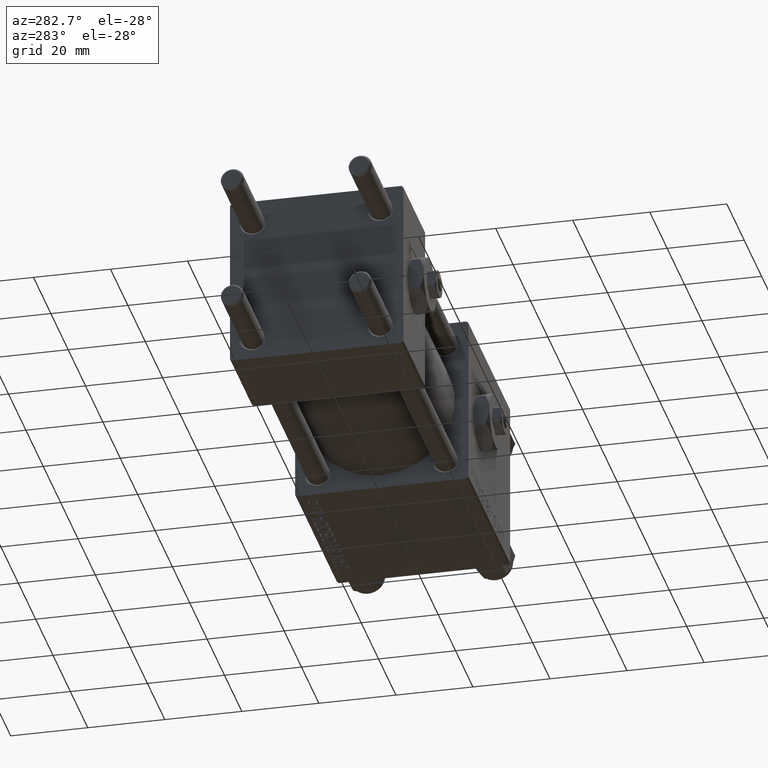
[diagram: clean part render]
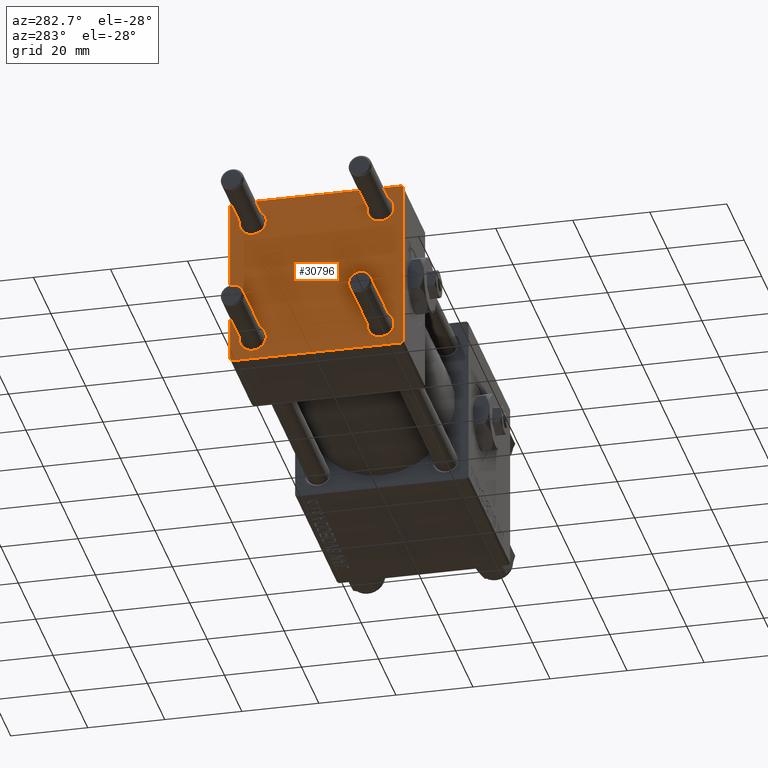
[diagram: same view with one face highlighted and labeled with its STEP entity id]
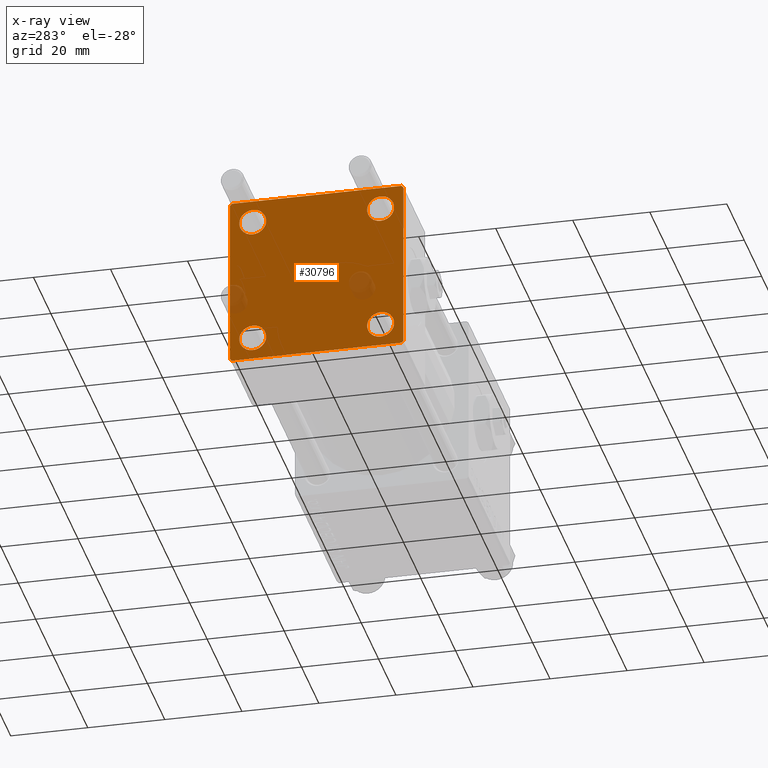
[diagram: x-ray of the same camera — body ghosted, the highlighted face saturated]
A machine part, auxiliary view. The second image highlights one B-rep face of the part: STEP entity #30796.
The next image is the same camera in x-ray: the body ghosted, the highlighted face saturated — about 4% of this face is hidden behind the body in this view.
In plain terms, the highlighted planar face has unit normal (-1, 0, 0).
Its self-contained STEP definition (entity closure, byte-faithful):
#735 = CIRCLE ( 'NONE', #33521, 3.499999999999996003 ) ;
#2781 = VERTEX_POINT ( 'NONE', #5909 ) ;
#3049 = CARTESIAN_POINT ( 'NONE',  ( 0.000000000000000000, 22.24999999999999645, 22.24999999999999645 ) ) ;
#3593 = AXIS2_PLACEMENT_3D ( 'NONE', #3646, #35483, #19184 ) ;
#3629 = FACE_BOUND ( 'NONE', #11762, .T. ) ;
#3646 = CARTESIAN_POINT ( 'NONE',  ( 0.000000000000000000, 16.59999999999999787, -16.60000000000000497 ) ) ;
#4244 = ORIENTED_EDGE ( 'NONE', *, *, #43833, .T. ) ;
#4326 = ORIENTED_EDGE ( 'NONE', *, *, #22191, .T. ) ;
#4416 = DIRECTION ( 'NONE',  ( 1.000000000000000000, -0.000000000000000000, 0.000000000000000000 ) ) ;
#4700 = ORIENTED_EDGE ( 'NONE', *, *, #30147, .T. ) ;
#5115 = VERTEX_POINT ( 'NONE', #24255 ) ;
#5337 = EDGE_CURVE ( 'NONE', #2781, #32099, #38142, .T. ) ;
#5786 = CARTESIAN_POINT ( 'NONE',  ( 0.000000000000000000, 21.99999999999999289, -22.49999999999999645 ) ) ;
#5909 = CARTESIAN_POINT ( 'NONE',  ( 0.000000000000000000, 21.99999999999999289, 22.50000000000000355 ) ) ;
#6973 = CARTESIAN_POINT ( 'NONE',  ( 0.000000000000000000, 22.50000000000000000, 22.50000000000000355 ) ) ;
#6981 = CIRCLE ( 'NONE', #3593, 3.499999999999996003 ) ;
#7110 = CARTESIAN_POINT ( 'NONE',  ( 0.000000000000000000, 22.50000000000000000, 22.50000000000000355 ) ) ;
#7246 = DIRECTION ( 'NONE',  ( 1.000000000000000000, -0.000000000000000000, 0.000000000000000000 ) ) ;
#8094 = LINE ( 'NONE', #48319, #42582 ) ;
#8873 = LINE ( 'NONE', #21252, #45205 ) ;
#9919 = EDGE_LOOP ( 'NONE', ( #42236, #19013 ) ) ;
#10467 = ORIENTED_EDGE ( 'NONE', *, *, #42221, .T. ) ;
#10866 = ORIENTED_EDGE ( 'NONE', *, *, #42326, .F. ) ;
#11271 = FACE_BOUND ( 'NONE', #31949, .T. ) ;
#11503 = CARTESIAN_POINT ( 'NONE',  ( 0.000000000000000000, -16.59999999999999076, -13.10000000000001030 ) ) ;
#11691 = EDGE_LOOP ( 'NONE', ( #24323, #17351, #33886, #21410, #10866, #10467, #21825, #4700 ) ) ;
#11762 = EDGE_LOOP ( 'NONE', ( #4326, #24115 ) ) ;
#11778 = FACE_OUTER_BOUND ( 'NONE', #11691, .T. ) ;
#11788 = CARTESIAN_POINT ( 'NONE',  ( 0.000000000000000000, -16.59999999999999076, -16.60000000000000853 ) ) ;
#11792 = DIRECTION ( 'NONE',  ( -0.000000000000000000, 0.7071067811865525687, 0.7071067811865425767 ) ) ;
#11844 = AXIS2_PLACEMENT_3D ( 'NONE', #18416, #34464, #46532 ) ;
#13180 = AXIS2_PLACEMENT_3D ( 'NONE', #44067, #47013, #15972 ) ;
#13386 = VERTEX_POINT ( 'NONE', #32019 ) ;
#14861 = CARTESIAN_POINT ( 'NONE',  ( 0.000000000000000000, -16.59999999999999076, 13.10000000000001030 ) ) ;
#14879 = CIRCLE ( 'NONE', #13180, 3.499999999999996003 ) ;
#15226 = AXIS2_PLACEMENT_3D ( 'NONE', #23479, #15334, #35573 ) ;
#15334 = DIRECTION ( 'NONE',  ( 1.000000000000000000, -0.000000000000000000, 0.000000000000000000 ) ) ;
#15767 = CARTESIAN_POINT ( 'NONE',  ( 0.000000000000000000, 16.59999999999999787, -13.10000000000000675 ) ) ;
#15972 = DIRECTION ( 'NONE',  ( 0.000000000000000000, 0.000000000000000000, 1.000000000000000000 ) ) ;
#15991 = PLANE ( 'NONE',  #41574 ) ;
#16016 = VECTOR ( 'NONE', #29876, 1000.000000000000000 ) ;
#16727 = DIRECTION ( 'NONE',  ( 0.000000000000000000, -1.000000000000000000, -2.312964634635742957E-16 ) ) ;
#16899 = CIRCLE ( 'NONE', #11844, 3.499999999999996003 ) ;
#17134 = EDGE_CURVE ( 'NONE', #40734, #5115, #21101, .T. ) ;
#17351 = ORIENTED_EDGE ( 'NONE', *, *, #35988, .T. ) ;
#17755 = AXIS2_PLACEMENT_3D ( 'NONE', #39054, #7246, #30418 ) ;
#18135 = EDGE_CURVE ( 'NONE', #21140, #49542, #44614, .T. ) ;
#18416 = CARTESIAN_POINT ( 'NONE',  ( 0.000000000000000000, 16.59999999999999787, 16.60000000000000497 ) ) ;
#19013 = ORIENTED_EDGE ( 'NONE', *, *, #48475, .T. ) ;
#19184 = DIRECTION ( 'NONE',  ( 0.000000000000000000, 0.000000000000000000, 1.000000000000000000 ) ) ;
#19238 = CARTESIAN_POINT ( 'NONE',  ( 0.000000000000000000, 16.59999999999999787, -20.10000000000000142 ) ) ;
#20144 = CARTESIAN_POINT ( 'NONE',  ( 0.000000000000000000, 22.50000000000000000, 21.99999999999999645 ) ) ;
#20462 = EDGE_CURVE ( 'NONE', #36752, #23588, #45087, .T. ) ;
#20469 = LINE ( 'NONE', #47813, #36798 ) ;
#20889 = EDGE_LOOP ( 'NONE', ( #4244, #33024 ) ) ;
#21101 = CIRCLE ( 'NONE', #15226, 3.499999999999996003 ) ;
#21140 = VERTEX_POINT ( 'NONE', #19238 ) ;
#21252 = CARTESIAN_POINT ( 'NONE',  ( 0.000000000000000000, -22.50000000000000000, 22.50000000000000000 ) ) ;
#21410 = ORIENTED_EDGE ( 'NONE', *, *, #35280, .T. ) ;
#21825 = ORIENTED_EDGE ( 'NONE', *, *, #5337, .F. ) ;
#21964 = CARTESIAN_POINT ( 'NONE',  ( 0.000000000000000000, -22.25000000000014566, -22.24999999999984013 ) ) ;
#22191 = EDGE_CURVE ( 'NONE', #49542, #21140, #6981, .T. ) ;
#23479 = CARTESIAN_POINT ( 'NONE',  ( 0.000000000000000000, -16.59999999999999076, 16.60000000000000853 ) ) ;
#23588 = VERTEX_POINT ( 'NONE', #26483 ) ;
#23631 = FACE_BOUND ( 'NONE', #20889, .T. ) ;
#23838 = DIRECTION ( 'NONE',  ( 1.000000000000000000, -0.000000000000000000, 0.000000000000000000 ) ) ;
#24115 = ORIENTED_EDGE ( 'NONE', *, *, #18135, .T. ) ;
#24255 = CARTESIAN_POINT ( 'NONE',  ( 0.000000000000000000, -16.59999999999999076, 20.10000000000000853 ) ) ;
#24290 = DIRECTION ( 'NONE',  ( 0.000000000000000000, 0.000000000000000000, 1.000000000000000000 ) ) ;
#24323 = ORIENTED_EDGE ( 'NONE', *, *, #50785, .T. ) ;
#24910 = DIRECTION ( 'NONE',  ( -0.000000000000000000, 0.000000000000000000, 1.000000000000000000 ) ) ;
#24923 = DIRECTION ( 'NONE',  ( 0.000000000000000000, 0.000000000000000000, -1.000000000000000000 ) ) ;
#25776 = VECTOR ( 'NONE', #50068, 1000.000000000000000 ) ;
#26026 = CIRCLE ( 'NONE', #31118, 3.499999999999996003 ) ;
#26483 = CARTESIAN_POINT ( 'NONE',  ( 0.000000000000000000, -21.99999999999997158, -22.50000000000000711 ) ) ;
#26831 = AXIS2_PLACEMENT_3D ( 'NONE', #32436, #28226, #24290 ) ;
#26966 = LINE ( 'NONE', #6973, #16016 ) ;
#28226 = DIRECTION ( 'NONE',  ( 1.000000000000000000, -0.000000000000000000, 0.000000000000000000 ) ) ;
#28289 = CARTESIAN_POINT ( 'NONE',  ( 0.000000000000000000, 16.59999999999999787, 16.60000000000000497 ) ) ;
#28531 = CIRCLE ( 'NONE', #26831, 3.499999999999996003 ) ;
#28821 = ORIENTED_EDGE ( 'NONE', *, *, #34165, .T. ) ;
#29876 = DIRECTION ( 'NONE',  ( 0.000000000000000000, 0.000000000000000000, -1.000000000000000000 ) ) ;
#30147 = EDGE_CURVE ( 'NONE', #2781, #36378, #39050, .T. ) ;
#30418 = DIRECTION ( 'NONE',  ( 0.000000000000000000, 0.000000000000000000, 1.000000000000000000 ) ) ;
#30446 = VECTOR ( 'NONE', #16727, 1000.000000000000000 ) ;
#30796 = ADVANCED_FACE ( 'NONE', ( #23631, #11271, #3629, #47797, #11778 ), #15991, .T. ) ;
#31118 = AXIS2_PLACEMENT_3D ( 'NONE', #11788, #4416, #35476 ) ;
#31196 = DIRECTION ( 'NONE',  ( 0.000000000000000000, 0.7071067811865474617, -0.7071067811865474617 ) ) ;
#31464 = DIRECTION ( 'NONE',  ( 0.000000000000000000, 0.000000000000000000, 1.000000000000000000 ) ) ;
#31949 = EDGE_LOOP ( 'NONE', ( #28821, #34668 ) ) ;
#32019 = CARTESIAN_POINT ( 'NONE',  ( 0.000000000000000000, -16.59999999999999076, -20.10000000000000497 ) ) ;
#32030 = CARTESIAN_POINT ( 'NONE',  ( 0.000000000000000000, 0.000000000000000000, 0.000000000000000000 ) ) ;
#32099 = VERTEX_POINT ( 'NONE', #47947 ) ;
#32201 = VERTEX_POINT ( 'NONE', #36115 ) ;
#32436 = CARTESIAN_POINT ( 'NONE',  ( 0.000000000000000000, -16.59999999999999076, 16.60000000000000853 ) ) ;
#33024 = ORIENTED_EDGE ( 'NONE', *, *, #17134, .T. ) ;
#33521 = AXIS2_PLACEMENT_3D ( 'NONE', #28289, #23838, #31464 ) ;
#33886 = ORIENTED_EDGE ( 'NONE', *, *, #20462, .T. ) ;
#34165 = EDGE_CURVE ( 'NONE', #51705, #13386, #14879, .T. ) ;
#34464 = DIRECTION ( 'NONE',  ( 1.000000000000000000, -0.000000000000000000, 0.000000000000000000 ) ) ;
#34668 = ORIENTED_EDGE ( 'NONE', *, *, #46808, .T. ) ;
#35280 = EDGE_CURVE ( 'NONE', #23588, #35696, #36484, .T. ) ;
#35476 = DIRECTION ( 'NONE',  ( 0.000000000000000000, 0.000000000000000000, 1.000000000000000000 ) ) ;
#35483 = DIRECTION ( 'NONE',  ( 1.000000000000000000, -0.000000000000000000, 0.000000000000000000 ) ) ;
#35573 = DIRECTION ( 'NONE',  ( 0.000000000000000000, 0.000000000000000000, 1.000000000000000000 ) ) ;
#35696 = VERTEX_POINT ( 'NONE', #51313 ) ;
#35988 = EDGE_CURVE ( 'NONE', #40967, #36752, #8094, .T. ) ;
#36115 = CARTESIAN_POINT ( 'NONE',  ( 0.000000000000000000, 16.59999999999999787, 13.10000000000000675 ) ) ;
#36378 = VERTEX_POINT ( 'NONE', #20144 ) ;
#36484 = LINE ( 'NONE', #21964, #25776 ) ;
#36752 = VERTEX_POINT ( 'NONE', #5786 ) ;
#36798 = VECTOR ( 'NONE', #11792, 999.9999999999998863 ) ;
#38142 = LINE ( 'NONE', #7110, #40933 ) ;
#39050 = LINE ( 'NONE', #3049, #49950 ) ;
#39054 = CARTESIAN_POINT ( 'NONE',  ( 0.000000000000000000, 16.59999999999999787, -16.60000000000000497 ) ) ;
#40623 = CARTESIAN_POINT ( 'NONE',  ( 0.000000000000000000, 22.50000000000000000, -22.49999999999999645 ) ) ;
#40720 = CARTESIAN_POINT ( 'NONE',  ( 0.000000000000000000, 16.59999999999999787, 20.10000000000000142 ) ) ;
#40734 = VERTEX_POINT ( 'NONE', #14861 ) ;
#40933 = VECTOR ( 'NONE', #46024, 1000.000000000000000 ) ;
#40967 = VERTEX_POINT ( 'NONE', #51568 ) ;
#41574 = AXIS2_PLACEMENT_3D ( 'NONE', #32030, #44878, #24910 ) ;
#42221 = EDGE_CURVE ( 'NONE', #50033, #32099, #20469, .T. ) ;
#42236 = ORIENTED_EDGE ( 'NONE', *, *, #42644, .T. ) ;
#42326 = EDGE_CURVE ( 'NONE', #50033, #35696, #8873, .T. ) ;
#42582 = VECTOR ( 'NONE', #51765, 1000.000000000000000 ) ;
#42644 = EDGE_CURVE ( 'NONE', #46008, #32201, #735, .T. ) ;
#43833 = EDGE_CURVE ( 'NONE', #5115, #40734, #28531, .T. ) ;
#44067 = CARTESIAN_POINT ( 'NONE',  ( 0.000000000000000000, -16.59999999999999076, -16.60000000000000853 ) ) ;
#44614 = CIRCLE ( 'NONE', #17755, 3.499999999999996003 ) ;
#44878 = DIRECTION ( 'NONE',  ( -1.000000000000000000, 0.000000000000000000, -0.000000000000000000 ) ) ;
#45087 = LINE ( 'NONE', #40623, #30446 ) ;
#45205 = VECTOR ( 'NONE', #24923, 1000.000000000000000 ) ;
#46008 = VERTEX_POINT ( 'NONE', #40720 ) ;
#46024 = DIRECTION ( 'NONE',  ( 0.000000000000000000, -1.000000000000000000, -7.709882115452476934E-17 ) ) ;
#46532 = DIRECTION ( 'NONE',  ( 0.000000000000000000, 0.000000000000000000, 1.000000000000000000 ) ) ;
#46808 = EDGE_CURVE ( 'NONE', #13386, #51705, #26026, .T. ) ;
#47013 = DIRECTION ( 'NONE',  ( 1.000000000000000000, -0.000000000000000000, 0.000000000000000000 ) ) ;
#47797 = FACE_BOUND ( 'NONE', #9919, .T. ) ;
#47813 = CARTESIAN_POINT ( 'NONE',  ( -0.000000000000000000, -22.24999999999984013, 22.25000000000015277 ) ) ;
#47947 = CARTESIAN_POINT ( 'NONE',  ( 0.000000000000000000, -21.99999999999997868, 22.50000000000000000 ) ) ;
#48319 = CARTESIAN_POINT ( 'NONE',  ( 0.000000000000000000, 22.25000000000014566, -22.24999999999984013 ) ) ;
#48475 = EDGE_CURVE ( 'NONE', #32201, #46008, #16899, .T. ) ;
#49542 = VERTEX_POINT ( 'NONE', #15767 ) ;
#49950 = VECTOR ( 'NONE', #31196, 1000.000000000000114 ) ;
#50033 = VERTEX_POINT ( 'NONE', #51147 ) ;
#50068 = DIRECTION ( 'NONE',  ( 0.000000000000000000, -0.7071067811865426878, 0.7071067811865524577 ) ) ;
#50785 = EDGE_CURVE ( 'NONE', #36378, #40967, #26966, .T. ) ;
#51147 = CARTESIAN_POINT ( 'NONE',  ( 0.000000000000000000, -22.50000000000000000, 22.00000000000000000 ) ) ;
#51313 = CARTESIAN_POINT ( 'NONE',  ( 0.000000000000000000, -22.50000000000000000, -21.99999999999997158 ) ) ;
#51568 = CARTESIAN_POINT ( 'NONE',  ( 0.000000000000000000, 22.50000000000000000, -21.99999999999996803 ) ) ;
#51705 = VERTEX_POINT ( 'NONE', #11503 ) ;
#51765 = DIRECTION ( 'NONE',  ( -0.000000000000000000, -0.7071067811865426878, -0.7071067811865524577 ) ) ;